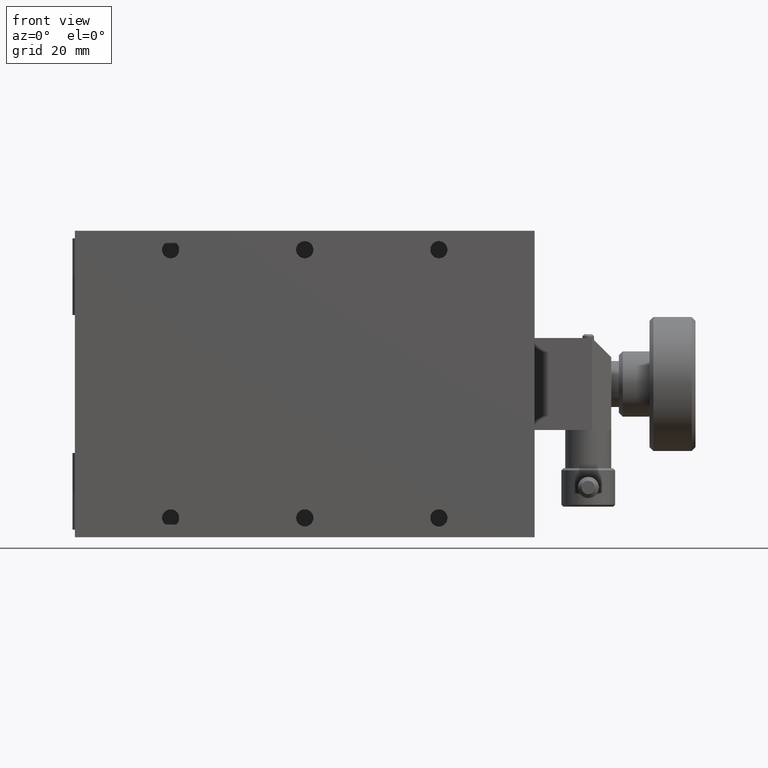
[diagram: clean part render]
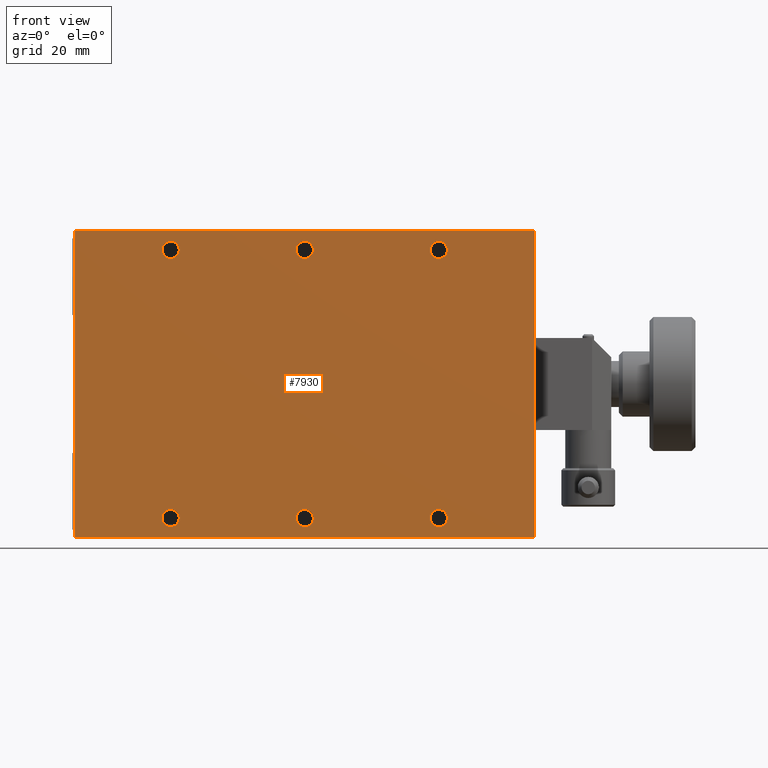
[diagram: same view with one face highlighted and labeled with its STEP entity id]
A machine part, front view. The second image highlights one B-rep face of the part: STEP entity #7930.
In plain terms, the highlighted planar face has unit normal (-0, 1, 0).
Its self-contained STEP definition (entity closure, byte-faithful):
#38 = VECTOR ( 'NONE', #2207, 1000.000000000000000 ) ;
#90 = AXIS2_PLACEMENT_3D ( 'NONE', #7018, #5101, #2929 ) ;
#153 = VERTEX_POINT ( 'NONE', #7493 ) ;
#170 = CARTESIAN_POINT ( 'NONE',  ( 95.00000000000000000, 0.000000000000000000, 37.25000000000000711 ) ) ;
#318 = LINE ( 'NONE', #3244, #1066 ) ;
#438 = VERTEX_POINT ( 'NONE', #7856 ) ;
#551 = DIRECTION ( 'NONE',  ( 0.000000000000000000, -1.000000000000000000, 0.000000000000000000 ) ) ;
#667 = ORIENTED_EDGE ( 'NONE', *, *, #5942, .F. ) ;
#827 = VERTEX_POINT ( 'NONE', #5050 ) ;
#874 = ORIENTED_EDGE ( 'NONE', *, *, #5219, .F. ) ;
#907 = VECTOR ( 'NONE', #6897, 1000.000000000000000 ) ;
#948 = EDGE_LOOP ( 'NONE', ( #6068, #3122 ) ) ;
#961 = EDGE_CURVE ( 'NONE', #8045, #6395, #2958, .T. ) ;
#1066 = VECTOR ( 'NONE', #4633, 1000.000000000000000 ) ;
#1143 = DIRECTION ( 'NONE',  ( 0.000000000000000000, 0.000000000000000000, -1.000000000000000000 ) ) ;
#1187 = CARTESIAN_POINT ( 'NONE',  ( 95.00000000000000000, 0.000000000000000000, 35.00000000000000000 ) ) ;
#1192 = VERTEX_POINT ( 'NONE', #1808 ) ;
#1250 = EDGE_LOOP ( 'NONE', ( #8672, #5392 ) ) ;
#1421 = DIRECTION ( 'NONE',  ( 0.000000000000000000, -1.000000000000000000, 0.000000000000000000 ) ) ;
#1525 = CIRCLE ( 'NONE', #7541, 2.250000000000001776 ) ;
#1559 = CARTESIAN_POINT ( 'NONE',  ( 95.00000000000000000, 0.000000000000000000, -35.00000000000000000 ) ) ;
#1633 = ORIENTED_EDGE ( 'NONE', *, *, #5415, .F. ) ;
#1662 = AXIS2_PLACEMENT_3D ( 'NONE', #5260, #3190, #5996 ) ;
#1671 = CARTESIAN_POINT ( 'NONE',  ( 95.00000000000000000, 0.000000000000000000, 32.75000000000000000 ) ) ;
#1675 = DIRECTION ( 'NONE',  ( 0.000000000000000000, -1.000000000000000000, 0.000000000000000000 ) ) ;
#1715 = VERTEX_POINT ( 'NONE', #2010 ) ;
#1808 = CARTESIAN_POINT ( 'NONE',  ( 0.000000000000000000, 0.000000000000000000, -40.00000000000000000 ) ) ;
#1863 = FACE_BOUND ( 'NONE', #7631, .T. ) ;
#1948 = FACE_BOUND ( 'NONE', #8415, .T. ) ;
#1994 = CARTESIAN_POINT ( 'NONE',  ( 0.000000000000000000, 0.000000000000000000, -40.00000000000000000 ) ) ;
#2010 = CARTESIAN_POINT ( 'NONE',  ( 95.00000000000000000, 0.000000000000000000, -32.75000000000000000 ) ) ;
#2037 = EDGE_CURVE ( 'NONE', #3657, #6134, #1525, .T. ) ;
#2072 = VERTEX_POINT ( 'NONE', #6779 ) ;
#2207 = DIRECTION ( 'NONE',  ( 0.000000000000000000, 0.000000000000000000, -1.000000000000000000 ) ) ;
#2316 = CARTESIAN_POINT ( 'NONE',  ( 60.00000000000000000, 0.000000000000000000, -35.00000000000000000 ) ) ;
#2410 = DIRECTION ( 'NONE',  ( 0.000000000000000000, 0.000000000000000000, -1.000000000000000000 ) ) ;
#2419 = ORIENTED_EDGE ( 'NONE', *, *, #4264, .F. ) ;
#2425 = CIRCLE ( 'NONE', #90, 2.250000000000001776 ) ;
#2567 = CARTESIAN_POINT ( 'NONE',  ( 120.0000000000000000, 0.000000000000000000, -40.00000000000000000 ) ) ;
#2591 = LINE ( 'NONE', #1994, #907 ) ;
#2774 = EDGE_LOOP ( 'NONE', ( #6382, #4346 ) ) ;
#2824 = CIRCLE ( 'NONE', #7962, 2.250000000000001776 ) ;
#2869 = DIRECTION ( 'NONE',  ( 0.000000000000000000, -1.000000000000000000, 0.000000000000000000 ) ) ;
#2894 = CARTESIAN_POINT ( 'NONE',  ( 25.00000000000000000, 0.000000000000000000, 32.75000000000000000 ) ) ;
#2929 = DIRECTION ( 'NONE',  ( 0.000000000000000000, 0.000000000000000000, -1.000000000000000000 ) ) ;
#2958 = CIRCLE ( 'NONE', #5898, 2.250000000000001776 ) ;
#3060 = DIRECTION ( 'NONE',  ( 0.000000000000000000, 0.000000000000000000, -1.000000000000000000 ) ) ;
#3122 = ORIENTED_EDGE ( 'NONE', *, *, #6327, .F. ) ;
#3161 = EDGE_CURVE ( 'NONE', #7829, #2072, #2425, .T. ) ;
#3190 = DIRECTION ( 'NONE',  ( 0.000000000000000000, -1.000000000000000000, 0.000000000000000000 ) ) ;
#3192 = VERTEX_POINT ( 'NONE', #3667 ) ;
#3233 = FACE_BOUND ( 'NONE', #1250, .T. ) ;
#3244 = CARTESIAN_POINT ( 'NONE',  ( 0.000000000000000000, 0.000000000000000000, 40.00000000000000000 ) ) ;
#3254 = LINE ( 'NONE', #2567, #4209 ) ;
#3335 = DIRECTION ( 'NONE',  ( 0.000000000000000000, 0.000000000000000000, -1.000000000000000000 ) ) ;
#3482 = DIRECTION ( 'NONE',  ( 0.000000000000000000, 0.000000000000000000, -1.000000000000000000 ) ) ;
#3492 = CARTESIAN_POINT ( 'NONE',  ( 25.00000000000000000, 0.000000000000000000, 37.25000000000000711 ) ) ;
#3525 = CARTESIAN_POINT ( 'NONE',  ( 25.00000000000000000, 0.000000000000000000, -32.75000000000000000 ) ) ;
#3542 = CIRCLE ( 'NONE', #7058, 2.250000000000001776 ) ;
#3583 = EDGE_CURVE ( 'NONE', #6134, #3657, #4928, .T. ) ;
#3657 = VERTEX_POINT ( 'NONE', #170 ) ;
#3667 = CARTESIAN_POINT ( 'NONE',  ( 25.00000000000000000, 0.000000000000000000, -37.25000000000000711 ) ) ;
#3793 = DIRECTION ( 'NONE',  ( 0.000000000000000000, -1.000000000000000000, 0.000000000000000000 ) ) ;
#3800 = DIRECTION ( 'NONE',  ( 0.000000000000000000, -1.000000000000000000, 0.000000000000000000 ) ) ;
#3801 = ORIENTED_EDGE ( 'NONE', *, *, #7277, .F. ) ;
#3931 = PLANE ( 'NONE',  #8259 ) ;
#3976 = FACE_BOUND ( 'NONE', #4491, .T. ) ;
#4031 = DIRECTION ( 'NONE',  ( 1.000000000000000000, 0.000000000000000000, 0.000000000000000000 ) ) ;
#4151 = DIRECTION ( 'NONE',  ( 0.000000000000000000, -1.000000000000000000, 0.000000000000000000 ) ) ;
#4170 = DIRECTION ( 'NONE',  ( 0.000000000000000000, 0.000000000000000000, -1.000000000000000000 ) ) ;
#4209 = VECTOR ( 'NONE', #5377, 1000.000000000000000 ) ;
#4250 = CIRCLE ( 'NONE', #6298, 2.250000000000001776 ) ;
#4264 = EDGE_CURVE ( 'NONE', #153, #1192, #3254, .T. ) ;
#4272 = CARTESIAN_POINT ( 'NONE',  ( 95.00000000000000000, 0.000000000000000000, -35.00000000000000000 ) ) ;
#4346 = ORIENTED_EDGE ( 'NONE', *, *, #2037, .F. ) ;
#4426 = CIRCLE ( 'NONE', #6609, 2.250000000000001776 ) ;
#4462 = ORIENTED_EDGE ( 'NONE', *, *, #7847, .F. ) ;
#4474 = EDGE_LOOP ( 'NONE', ( #2419, #1633, #667, #874 ) ) ;
#4483 = CARTESIAN_POINT ( 'NONE',  ( 25.00000000000000000, 0.000000000000000000, 35.00000000000000000 ) ) ;
#4491 = EDGE_LOOP ( 'NONE', ( #6932, #5113 ) ) ;
#4538 = CARTESIAN_POINT ( 'NONE',  ( 25.00000000000000000, 0.000000000000000000, 35.00000000000000000 ) ) ;
#4578 = CARTESIAN_POINT ( 'NONE',  ( 60.00000000000000000, 0.000000000000000000, -35.00000000000000000 ) ) ;
#4630 = CARTESIAN_POINT ( 'NONE',  ( 95.00000000000000000, 0.000000000000000000, -37.25000000000000711 ) ) ;
#4633 = DIRECTION ( 'NONE',  ( 1.000000000000000000, 0.000000000000000000, 0.000000000000000000 ) ) ;
#4680 = VERTEX_POINT ( 'NONE', #4630 ) ;
#4928 = CIRCLE ( 'NONE', #5807, 2.250000000000001776 ) ;
#5050 = CARTESIAN_POINT ( 'NONE',  ( 0.000000000000000000, 0.000000000000000000, 40.00000000000000000 ) ) ;
#5101 = DIRECTION ( 'NONE',  ( 0.000000000000000000, -1.000000000000000000, 0.000000000000000000 ) ) ;
#5103 = EDGE_CURVE ( 'NONE', #6395, #8045, #4426, .T. ) ;
#5113 = ORIENTED_EDGE ( 'NONE', *, *, #5103, .F. ) ;
#5169 = CARTESIAN_POINT ( 'NONE',  ( 60.00000000000000000, 0.000000000000000000, 37.25000000000000711 ) ) ;
#5219 = EDGE_CURVE ( 'NONE', #1192, #827, #2591, .T. ) ;
#5260 = CARTESIAN_POINT ( 'NONE',  ( 25.00000000000000000, 0.000000000000000000, -35.00000000000000000 ) ) ;
#5377 = DIRECTION ( 'NONE',  ( -1.000000000000000000, 0.000000000000000000, 0.000000000000000000 ) ) ;
#5392 = ORIENTED_EDGE ( 'NONE', *, *, #3161, .F. ) ;
#5400 = FACE_OUTER_BOUND ( 'NONE', #4474, .T. ) ;
#5415 = EDGE_CURVE ( 'NONE', #6566, #153, #7128, .T. ) ;
#5473 = CARTESIAN_POINT ( 'NONE',  ( 120.0000000000000000, 0.000000000000000000, 40.00000000000000000 ) ) ;
#5625 = CIRCLE ( 'NONE', #1662, 2.250000000000001776 ) ;
#5807 = AXIS2_PLACEMENT_3D ( 'NONE', #7042, #2869, #4170 ) ;
#5898 = AXIS2_PLACEMENT_3D ( 'NONE', #4538, #3800, #3060 ) ;
#5942 = EDGE_CURVE ( 'NONE', #827, #6566, #318, .T. ) ;
#5996 = DIRECTION ( 'NONE',  ( 0.000000000000000000, 0.000000000000000000, -1.000000000000000000 ) ) ;
#6068 = ORIENTED_EDGE ( 'NONE', *, *, #8026, .F. ) ;
#6134 = VERTEX_POINT ( 'NONE', #1671 ) ;
#6298 = AXIS2_PLACEMENT_3D ( 'NONE', #1559, #6462, #3482 ) ;
#6304 = VERTEX_POINT ( 'NONE', #7547 ) ;
#6327 = EDGE_CURVE ( 'NONE', #6748, #3192, #2824, .T. ) ;
#6368 = EDGE_CURVE ( 'NONE', #2072, #7829, #7816, .T. ) ;
#6382 = ORIENTED_EDGE ( 'NONE', *, *, #3583, .F. ) ;
#6395 = VERTEX_POINT ( 'NONE', #3492 ) ;
#6443 = CIRCLE ( 'NONE', #8636, 2.250000000000001776 ) ;
#6462 = DIRECTION ( 'NONE',  ( 0.000000000000000000, -1.000000000000000000, 0.000000000000000000 ) ) ;
#6566 = VERTEX_POINT ( 'NONE', #5473 ) ;
#6609 = AXIS2_PLACEMENT_3D ( 'NONE', #4483, #1675, #7918 ) ;
#6748 = VERTEX_POINT ( 'NONE', #3525 ) ;
#6771 = FACE_BOUND ( 'NONE', #2774, .T. ) ;
#6779 = CARTESIAN_POINT ( 'NONE',  ( 60.00000000000000000, 0.000000000000000000, 32.75000000000000000 ) ) ;
#6893 = CARTESIAN_POINT ( 'NONE',  ( 25.00000000000000000, 0.000000000000000000, -35.00000000000000000 ) ) ;
#6897 = DIRECTION ( 'NONE',  ( 0.000000000000000000, 0.000000000000000000, 1.000000000000000000 ) ) ;
#6932 = ORIENTED_EDGE ( 'NONE', *, *, #961, .F. ) ;
#6985 = DIRECTION ( 'NONE',  ( 0.000000000000000000, 0.000000000000000000, -1.000000000000000000 ) ) ;
#7018 = CARTESIAN_POINT ( 'NONE',  ( 60.00000000000000000, 0.000000000000000000, 35.00000000000000000 ) ) ;
#7042 = CARTESIAN_POINT ( 'NONE',  ( 95.00000000000000000, 0.000000000000000000, 35.00000000000000000 ) ) ;
#7058 = AXIS2_PLACEMENT_3D ( 'NONE', #4578, #3793, #1143 ) ;
#7073 = AXIS2_PLACEMENT_3D ( 'NONE', #2316, #7274, #2410 ) ;
#7107 = DIRECTION ( 'NONE',  ( 0.000000000000000000, 0.000000000000000000, -1.000000000000000000 ) ) ;
#7128 = LINE ( 'NONE', #8414, #38 ) ;
#7274 = DIRECTION ( 'NONE',  ( 0.000000000000000000, -1.000000000000000000, 0.000000000000000000 ) ) ;
#7277 = EDGE_CURVE ( 'NONE', #6304, #438, #3542, .T. ) ;
#7417 = CARTESIAN_POINT ( 'NONE',  ( 0.000000000000000000, 0.000000000000000000, 0.000000000000000000 ) ) ;
#7493 = CARTESIAN_POINT ( 'NONE',  ( 120.0000000000000000, 0.000000000000000000, -40.00000000000000000 ) ) ;
#7541 = AXIS2_PLACEMENT_3D ( 'NONE', #1187, #551, #3335 ) ;
#7547 = CARTESIAN_POINT ( 'NONE',  ( 60.00000000000000000, 0.000000000000000000, -37.25000000000000711 ) ) ;
#7631 = EDGE_LOOP ( 'NONE', ( #3801, #4462 ) ) ;
#7726 = DIRECTION ( 'NONE',  ( 0.000000000000000000, 0.000000000000000000, -1.000000000000000000 ) ) ;
#7816 = CIRCLE ( 'NONE', #8109, 2.250000000000001776 ) ;
#7829 = VERTEX_POINT ( 'NONE', #5169 ) ;
#7847 = EDGE_CURVE ( 'NONE', #438, #6304, #8116, .T. ) ;
#7856 = CARTESIAN_POINT ( 'NONE',  ( 60.00000000000000000, 0.000000000000000000, -32.75000000000000000 ) ) ;
#7918 = DIRECTION ( 'NONE',  ( 0.000000000000000000, 0.000000000000000000, -1.000000000000000000 ) ) ;
#7930 = ADVANCED_FACE ( 'NONE', ( #3233, #3976, #1948, #1863, #8157, #6771, #5400 ), #3931, .F. ) ;
#7962 = AXIS2_PLACEMENT_3D ( 'NONE', #6893, #4151, #7726 ) ;
#8026 = EDGE_CURVE ( 'NONE', #3192, #6748, #5625, .T. ) ;
#8045 = VERTEX_POINT ( 'NONE', #2894 ) ;
#8109 = AXIS2_PLACEMENT_3D ( 'NONE', #9053, #8322, #6985 ) ;
#8116 = CIRCLE ( 'NONE', #7073, 2.250000000000001776 ) ;
#8157 = FACE_BOUND ( 'NONE', #948, .T. ) ;
#8241 = DIRECTION ( 'NONE',  ( -0.000000000000000000, 1.000000000000000000, 0.000000000000000000 ) ) ;
#8259 = AXIS2_PLACEMENT_3D ( 'NONE', #7417, #8241, #4031 ) ;
#8322 = DIRECTION ( 'NONE',  ( 0.000000000000000000, -1.000000000000000000, 0.000000000000000000 ) ) ;
#8414 = CARTESIAN_POINT ( 'NONE',  ( 120.0000000000000000, 0.000000000000000000, 40.00000000000000000 ) ) ;
#8415 = EDGE_LOOP ( 'NONE', ( #8500, #8417 ) ) ;
#8417 = ORIENTED_EDGE ( 'NONE', *, *, #8545, .F. ) ;
#8482 = EDGE_CURVE ( 'NONE', #4680, #1715, #6443, .T. ) ;
#8500 = ORIENTED_EDGE ( 'NONE', *, *, #8482, .F. ) ;
#8545 = EDGE_CURVE ( 'NONE', #1715, #4680, #4250, .T. ) ;
#8636 = AXIS2_PLACEMENT_3D ( 'NONE', #4272, #1421, #7107 ) ;
#8672 = ORIENTED_EDGE ( 'NONE', *, *, #6368, .F. ) ;
#9053 = CARTESIAN_POINT ( 'NONE',  ( 60.00000000000000000, 0.000000000000000000, 35.00000000000000000 ) ) ;